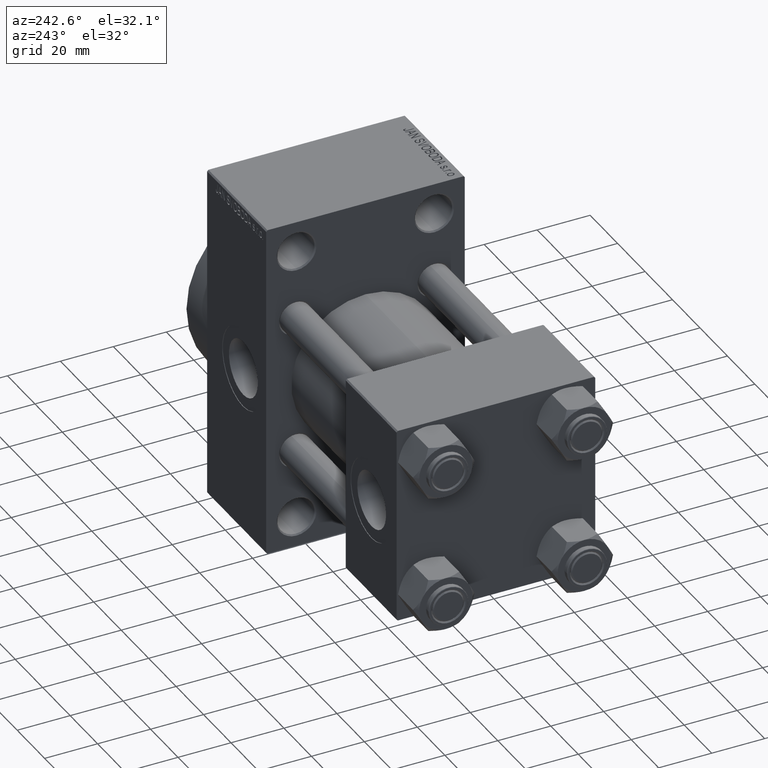
[diagram: clean part render]
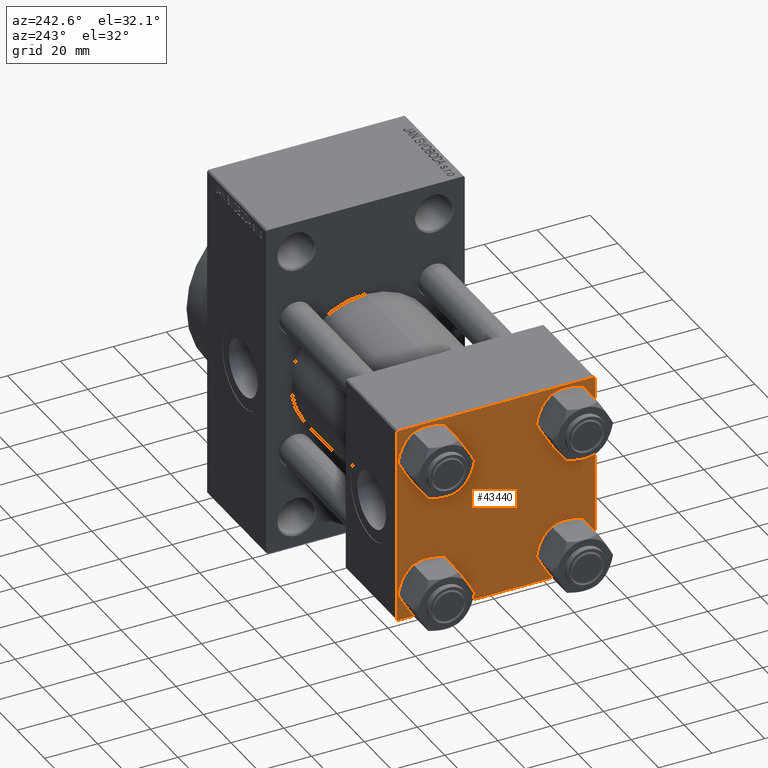
[diagram: same view with one face highlighted and labeled with its STEP entity id]
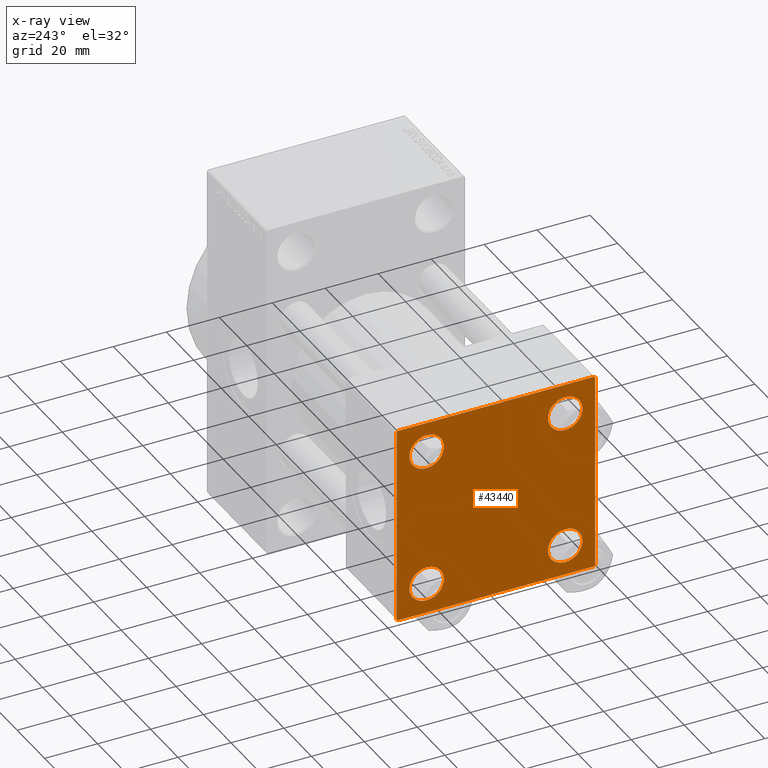
[diagram: x-ray of the same camera — body ghosted, the highlighted face saturated]
A machine part, auxiliary view. The second image highlights one B-rep face of the part: STEP entity #43440.
The next image is the same camera in x-ray: the body ghosted, the highlighted face saturated — about 0% of this face is hidden behind the body in this view.
In plain terms, the highlighted planar face has unit normal (-1, 0, 0).
Its self-contained STEP definition (entity closure, byte-faithful):
#9 = LINE ( 'NONE', #39632, #28998 ) ;
#17 = ORIENTED_EDGE ( 'NONE', *, *, #23462, .T. ) ;
#617 = CARTESIAN_POINT ( 'NONE',  ( 0.000000000000000000, -26.14999999999999147, 26.15000000000000924 ) ) ;
#833 = LINE ( 'NONE', #12050, #46002 ) ;
#1672 = CIRCLE ( 'NONE', #27604, 6.500000000000015987 ) ;
#2073 = LINE ( 'NONE', #5644, #26953 ) ;
#2762 = LINE ( 'NONE', #42633, #46784 ) ;
#3359 = DIRECTION ( 'NONE',  ( 0.000000000000000000, 0.000000000000000000, 1.000000000000000000 ) ) ;
#4164 = VERTEX_POINT ( 'NONE', #46327 ) ;
#4278 = CARTESIAN_POINT ( 'NONE',  ( 0.000000000000000000, 0.000000000000000000, 0.000000000000000000 ) ) ;
#4427 = DIRECTION ( 'NONE',  ( 1.000000000000000000, -0.000000000000000000, 0.000000000000000000 ) ) ;
#4690 = CARTESIAN_POINT ( 'NONE',  ( 0.000000000000000000, 26.14999999999999858, 32.65000000000002700 ) ) ;
#5415 = EDGE_CURVE ( 'NONE', #26622, #12368, #34796, .T. ) ;
#5642 = CARTESIAN_POINT ( 'NONE',  ( 0.000000000000000000, 26.14999999999999858, -32.65000000000001990 ) ) ;
#5644 = CARTESIAN_POINT ( 'NONE',  ( 0.000000000000000000, 37.49999999999999289, 37.50000000000000000 ) ) ;
#5992 = DIRECTION ( 'NONE',  ( 1.000000000000000000, -0.000000000000000000, 0.000000000000000000 ) ) ;
#6402 = VERTEX_POINT ( 'NONE', #5642 ) ;
#6477 = VERTEX_POINT ( 'NONE', #21154 ) ;
#6782 = ORIENTED_EDGE ( 'NONE', *, *, #36673, .T. ) ;
#7153 = EDGE_CURVE ( 'NONE', #41303, #6402, #18058, .T. ) ;
#7286 = VECTOR ( 'NONE', #46289, 1000.000000000000114 ) ;
#7935 = AXIS2_PLACEMENT_3D ( 'NONE', #17477, #14356, #3359 ) ;
#8038 = AXIS2_PLACEMENT_3D ( 'NONE', #4278, #26018, #18846 ) ;
#8471 = DIRECTION ( 'NONE',  ( 0.000000000000000000, -1.000000000000000000, -9.251858538542972814E-17 ) ) ;
#8684 = EDGE_LOOP ( 'NONE', ( #37491, #33165 ) ) ;
#8810 = FACE_OUTER_BOUND ( 'NONE', #40723, .T. ) ;
#9228 = CARTESIAN_POINT ( 'NONE',  ( 0.000000000000000000, 26.14999999999999858, -26.15000000000000213 ) ) ;
#9248 = EDGE_LOOP ( 'NONE', ( #34254, #27040 ) ) ;
#9465 = DIRECTION ( 'NONE',  ( 0.000000000000000000, -1.000000000000000000, -9.251858538542971581E-17 ) ) ;
#10119 = CARTESIAN_POINT ( 'NONE',  ( 0.000000000000000000, -37.50000000000000000, -37.00000000000003553 ) ) ;
#10742 = DIRECTION ( 'NONE',  ( 0.000000000000000000, 9.251858538542971581E-17, -1.000000000000000000 ) ) ;
#11887 = CARTESIAN_POINT ( 'NONE',  ( 0.000000000000000000, -26.14999999999999147, -19.64999999999999503 ) ) ;
#12050 = CARTESIAN_POINT ( 'NONE',  ( 0.000000000000000000, 37.49999999999999289, -37.50000000000000000 ) ) ;
#12368 = VERTEX_POINT ( 'NONE', #21222 ) ;
#12411 = DIRECTION ( 'NONE',  ( 1.000000000000000000, -0.000000000000000000, 0.000000000000000000 ) ) ;
#12527 = CIRCLE ( 'NONE', #7935, 6.500000000000023093 ) ;
#12696 = CARTESIAN_POINT ( 'NONE',  ( 0.000000000000000000, -26.14999999999999147, 26.15000000000000924 ) ) ;
#13095 = DIRECTION ( 'NONE',  ( 0.000000000000000000, 0.000000000000000000, -1.000000000000000000 ) ) ;
#14356 = DIRECTION ( 'NONE',  ( 1.000000000000000000, -0.000000000000000000, 0.000000000000000000 ) ) ;
#14486 = VERTEX_POINT ( 'NONE', #36081 ) ;
#15555 = VERTEX_POINT ( 'NONE', #41612 ) ;
#16534 = ORIENTED_EDGE ( 'NONE', *, *, #33862, .T. ) ;
#16553 = ORIENTED_EDGE ( 'NONE', *, *, #37388, .T. ) ;
#17477 = CARTESIAN_POINT ( 'NONE',  ( 0.000000000000000000, 26.14999999999999858, 26.15000000000000213 ) ) ;
#17687 = EDGE_CURVE ( 'NONE', #6477, #23015, #9, .T. ) ;
#18058 = CIRCLE ( 'NONE', #45535, 6.500000000000015987 ) ;
#18220 = EDGE_CURVE ( 'NONE', #4164, #20090, #34314, .T. ) ;
#18284 = AXIS2_PLACEMENT_3D ( 'NONE', #617, #4427, #30225 ) ;
#18846 = DIRECTION ( 'NONE',  ( -0.000000000000000000, 0.000000000000000000, 1.000000000000000000 ) ) ;
#20016 = ORIENTED_EDGE ( 'NONE', *, *, #30673, .T. ) ;
#20090 = VERTEX_POINT ( 'NONE', #20247 ) ;
#20247 = CARTESIAN_POINT ( 'NONE',  ( 0.000000000000000000, -26.14999999999999147, 32.65000000000003411 ) ) ;
#20266 = LINE ( 'NONE', #38871, #7286 ) ;
#20700 = DIRECTION ( 'NONE',  ( 0.000000000000000000, 0.000000000000000000, 1.000000000000000000 ) ) ;
#20800 = ORIENTED_EDGE ( 'NONE', *, *, #17687, .F. ) ;
#21154 = CARTESIAN_POINT ( 'NONE',  ( 0.000000000000000000, -37.50000000000000711, 36.99999999999999289 ) ) ;
#21222 = CARTESIAN_POINT ( 'NONE',  ( 0.000000000000000000, -26.14999999999999147, -32.65000000000002700 ) ) ;
#22328 = CIRCLE ( 'NONE', #43026, 6.500000000000023093 ) ;
#22444 = CARTESIAN_POINT ( 'NONE',  ( 0.000000000000000000, 26.14999999999999858, 26.15000000000000213 ) ) ;
#22907 = FACE_BOUND ( 'NONE', #34469, .T. ) ;
#23015 = VERTEX_POINT ( 'NONE', #10119 ) ;
#23462 = EDGE_CURVE ( 'NONE', #20090, #4164, #38185, .T. ) ;
#24731 = CIRCLE ( 'NONE', #44561, 6.500000000000015987 ) ;
#24735 = DIRECTION ( 'NONE',  ( -0.000000000000000000, 0.7071067811865474617, 0.7071067811865474617 ) ) ;
#24890 = CARTESIAN_POINT ( 'NONE',  ( 0.000000000000000000, 26.14999999999999858, -19.64999999999998792 ) ) ;
#25012 = EDGE_CURVE ( 'NONE', #6477, #35755, #39755, .T. ) ;
#26018 = DIRECTION ( 'NONE',  ( -1.000000000000000000, 0.000000000000000000, -0.000000000000000000 ) ) ;
#26253 = FACE_BOUND ( 'NONE', #30792, .T. ) ;
#26300 = ORIENTED_EDGE ( 'NONE', *, *, #25012, .T. ) ;
#26471 = ORIENTED_EDGE ( 'NONE', *, *, #43446, .T. ) ;
#26622 = VERTEX_POINT ( 'NONE', #11887 ) ;
#26744 = DIRECTION ( 'NONE',  ( 0.000000000000000000, 0.000000000000000000, 1.000000000000000000 ) ) ;
#26893 = VECTOR ( 'NONE', #13095, 1000.000000000000000 ) ;
#26953 = VECTOR ( 'NONE', #9465, 1000.000000000000000 ) ;
#27040 = ORIENTED_EDGE ( 'NONE', *, *, #40237, .T. ) ;
#27604 = AXIS2_PLACEMENT_3D ( 'NONE', #31928, #43599, #28115 ) ;
#27621 = VERTEX_POINT ( 'NONE', #4690 ) ;
#28115 = DIRECTION ( 'NONE',  ( 0.000000000000000000, 0.000000000000000000, 1.000000000000000000 ) ) ;
#28840 = ORIENTED_EDGE ( 'NONE', *, *, #31822, .T. ) ;
#28881 = VERTEX_POINT ( 'NONE', #33559 ) ;
#28998 = VECTOR ( 'NONE', #10742, 1000.000000000000000 ) ;
#29613 = FACE_BOUND ( 'NONE', #8684, .T. ) ;
#29805 = EDGE_CURVE ( 'NONE', #12368, #26622, #1672, .T. ) ;
#30225 = DIRECTION ( 'NONE',  ( 0.000000000000000000, 0.000000000000000000, 1.000000000000000000 ) ) ;
#30673 = EDGE_CURVE ( 'NONE', #44976, #45175, #37688, .T. ) ;
#30792 = EDGE_LOOP ( 'NONE', ( #32912, #6782 ) ) ;
#31240 = CARTESIAN_POINT ( 'NONE',  ( 0.000000000000000000, 37.49999999999999289, 37.50000000000000000 ) ) ;
#31822 = EDGE_CURVE ( 'NONE', #14486, #44976, #34583, .T. ) ;
#31903 = DIRECTION ( 'NONE',  ( 0.000000000000000000, -0.7071067811865524577, 0.7071067811865426878 ) ) ;
#31928 = CARTESIAN_POINT ( 'NONE',  ( 0.000000000000000000, -26.14999999999999147, -26.15000000000000924 ) ) ;
#32130 = VECTOR ( 'NONE', #24735, 1000.000000000000114 ) ;
#32912 = ORIENTED_EDGE ( 'NONE', *, *, #39545, .T. ) ;
#33107 = DIRECTION ( 'NONE',  ( 0.000000000000000000, 0.000000000000000000, 1.000000000000000000 ) ) ;
#33165 = ORIENTED_EDGE ( 'NONE', *, *, #29805, .T. ) ;
#33559 = CARTESIAN_POINT ( 'NONE',  ( 0.000000000000000000, 36.99999999999999289, 37.50000000000000000 ) ) ;
#33862 = EDGE_CURVE ( 'NONE', #15555, #23015, #2762, .T. ) ;
#33897 = FACE_BOUND ( 'NONE', #9248, .T. ) ;
#34254 = ORIENTED_EDGE ( 'NONE', *, *, #7153, .T. ) ;
#34314 = CIRCLE ( 'NONE', #18284, 6.500000000000023093 ) ;
#34383 = AXIS2_PLACEMENT_3D ( 'NONE', #12696, #5992, #42275 ) ;
#34469 = EDGE_LOOP ( 'NONE', ( #17, #38693 ) ) ;
#34488 = VECTOR ( 'NONE', #44372, 1000.000000000000114 ) ;
#34583 = LINE ( 'NONE', #31240, #26893 ) ;
#34796 = CIRCLE ( 'NONE', #39349, 6.500000000000015987 ) ;
#35755 = VERTEX_POINT ( 'NONE', #41518 ) ;
#36081 = CARTESIAN_POINT ( 'NONE',  ( 0.000000000000000000, 37.49999999999999289, 37.00000000000000000 ) ) ;
#36673 = EDGE_CURVE ( 'NONE', #45652, #27621, #22328, .T. ) ;
#36989 = CARTESIAN_POINT ( 'NONE',  ( 0.000000000000000000, 36.99999999999997868, -37.50000000000000000 ) ) ;
#37112 = EDGE_CURVE ( 'NONE', #28881, #35755, #2073, .T. ) ;
#37388 = EDGE_CURVE ( 'NONE', #45175, #15555, #833, .T. ) ;
#37491 = ORIENTED_EDGE ( 'NONE', *, *, #5415, .T. ) ;
#37688 = LINE ( 'NONE', #41256, #34488 ) ;
#37836 = CARTESIAN_POINT ( 'NONE',  ( 0.000000000000000000, 37.49999999999999289, -36.99999999999998579 ) ) ;
#38185 = CIRCLE ( 'NONE', #34383, 6.500000000000023093 ) ;
#38355 = DIRECTION ( 'NONE',  ( 1.000000000000000000, -0.000000000000000000, 0.000000000000000000 ) ) ;
#38511 = DIRECTION ( 'NONE',  ( 1.000000000000000000, -0.000000000000000000, 0.000000000000000000 ) ) ;
#38693 = ORIENTED_EDGE ( 'NONE', *, *, #18220, .T. ) ;
#38729 = CARTESIAN_POINT ( 'NONE',  ( 0.000000000000000000, 26.14999999999999858, -26.15000000000000213 ) ) ;
#38871 = CARTESIAN_POINT ( 'NONE',  ( 0.000000000000000000, 37.24999999999999289, 37.24999999999999289 ) ) ;
#39349 = AXIS2_PLACEMENT_3D ( 'NONE', #44085, #38511, #33107 ) ;
#39545 = EDGE_CURVE ( 'NONE', #27621, #45652, #12527, .T. ) ;
#39632 = CARTESIAN_POINT ( 'NONE',  ( 0.000000000000000000, -37.50000000000000711, 37.49999999999999289 ) ) ;
#39755 = LINE ( 'NONE', #42865, #32130 ) ;
#39945 = CARTESIAN_POINT ( 'NONE',  ( 0.000000000000000000, 26.14999999999999858, 19.64999999999998437 ) ) ;
#40237 = EDGE_CURVE ( 'NONE', #6402, #41303, #24731, .T. ) ;
#40723 = EDGE_LOOP ( 'NONE', ( #28840, #20016, #16553, #16534, #20800, #26300, #46024, #26471 ) ) ;
#41256 = CARTESIAN_POINT ( 'NONE',  ( 0.000000000000000000, 37.24999999999998579, -37.24999999999998579 ) ) ;
#41303 = VERTEX_POINT ( 'NONE', #24890 ) ;
#41518 = CARTESIAN_POINT ( 'NONE',  ( 0.000000000000000000, -37.00000000000000711, 37.49999999999999289 ) ) ;
#41612 = CARTESIAN_POINT ( 'NONE',  ( 0.000000000000000000, -37.00000000000002132, -37.50000000000000711 ) ) ;
#42275 = DIRECTION ( 'NONE',  ( 0.000000000000000000, 0.000000000000000000, 1.000000000000000000 ) ) ;
#42546 = DIRECTION ( 'NONE',  ( 0.000000000000000000, 0.000000000000000000, 1.000000000000000000 ) ) ;
#42633 = CARTESIAN_POINT ( 'NONE',  ( 0.000000000000000000, -37.24999999999975842, -37.25000000000027001 ) ) ;
#42865 = CARTESIAN_POINT ( 'NONE',  ( -0.000000000000000000, -37.25000000000000000, 37.25000000000000000 ) ) ;
#43026 = AXIS2_PLACEMENT_3D ( 'NONE', #22444, #12411, #26744 ) ;
#43440 = ADVANCED_FACE ( 'NONE', ( #22907, #29613, #33897, #26253, #8810 ), #44158, .T. ) ;
#43446 = EDGE_CURVE ( 'NONE', #28881, #14486, #20266, .T. ) ;
#43599 = DIRECTION ( 'NONE',  ( 1.000000000000000000, -0.000000000000000000, 0.000000000000000000 ) ) ;
#44085 = CARTESIAN_POINT ( 'NONE',  ( 0.000000000000000000, -26.14999999999999147, -26.15000000000000924 ) ) ;
#44158 = PLANE ( 'NONE',  #8038 ) ;
#44372 = DIRECTION ( 'NONE',  ( -0.000000000000000000, -0.7071067811865474617, -0.7071067811865474617 ) ) ;
#44561 = AXIS2_PLACEMENT_3D ( 'NONE', #38729, #46385, #42546 ) ;
#44976 = VERTEX_POINT ( 'NONE', #37836 ) ;
#45175 = VERTEX_POINT ( 'NONE', #36989 ) ;
#45535 = AXIS2_PLACEMENT_3D ( 'NONE', #9228, #38355, #20700 ) ;
#45652 = VERTEX_POINT ( 'NONE', #39945 ) ;
#46002 = VECTOR ( 'NONE', #8471, 1000.000000000000000 ) ;
#46024 = ORIENTED_EDGE ( 'NONE', *, *, #37112, .F. ) ;
#46289 = DIRECTION ( 'NONE',  ( 0.000000000000000000, 0.7071067811865474617, -0.7071067811865474617 ) ) ;
#46327 = CARTESIAN_POINT ( 'NONE',  ( 0.000000000000000000, -26.14999999999999147, 19.64999999999999147 ) ) ;
#46385 = DIRECTION ( 'NONE',  ( 1.000000000000000000, -0.000000000000000000, 0.000000000000000000 ) ) ;
#46784 = VECTOR ( 'NONE', #31903, 1000.000000000000000 ) ;